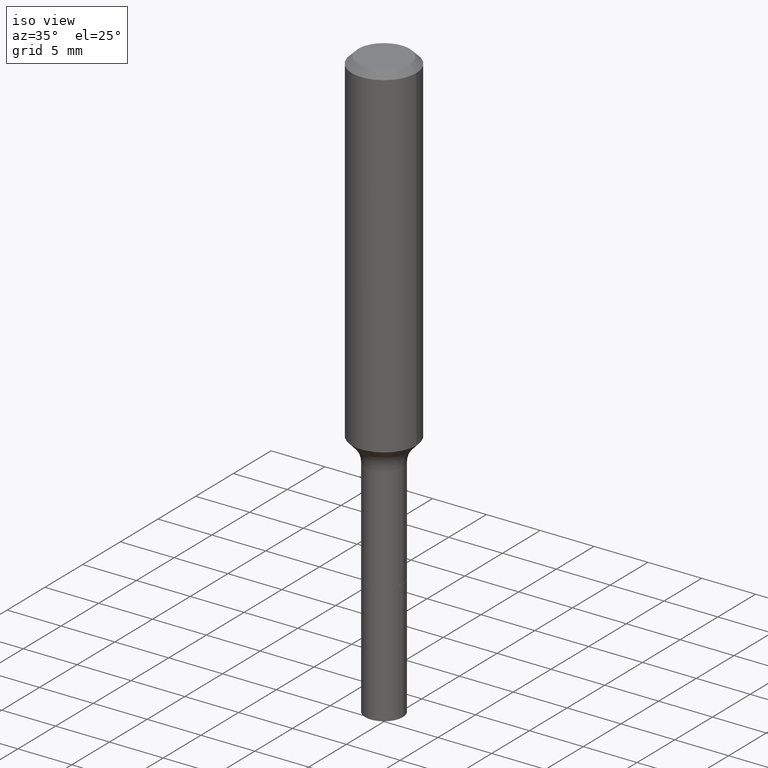
[diagram: clean part render]
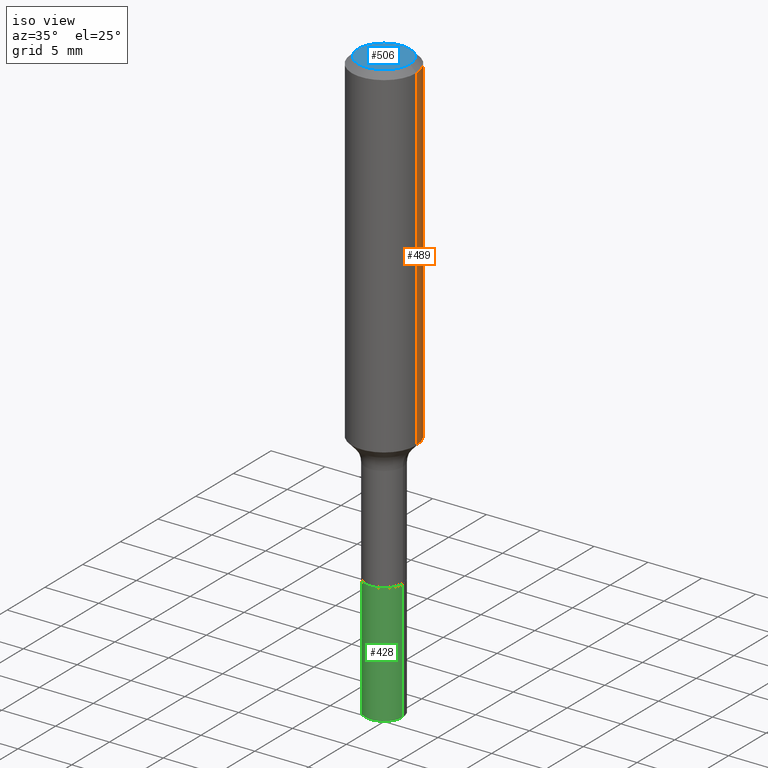
[diagram: same view with three faces highlighted in distinct colors, each labeled with its STEP entity id]
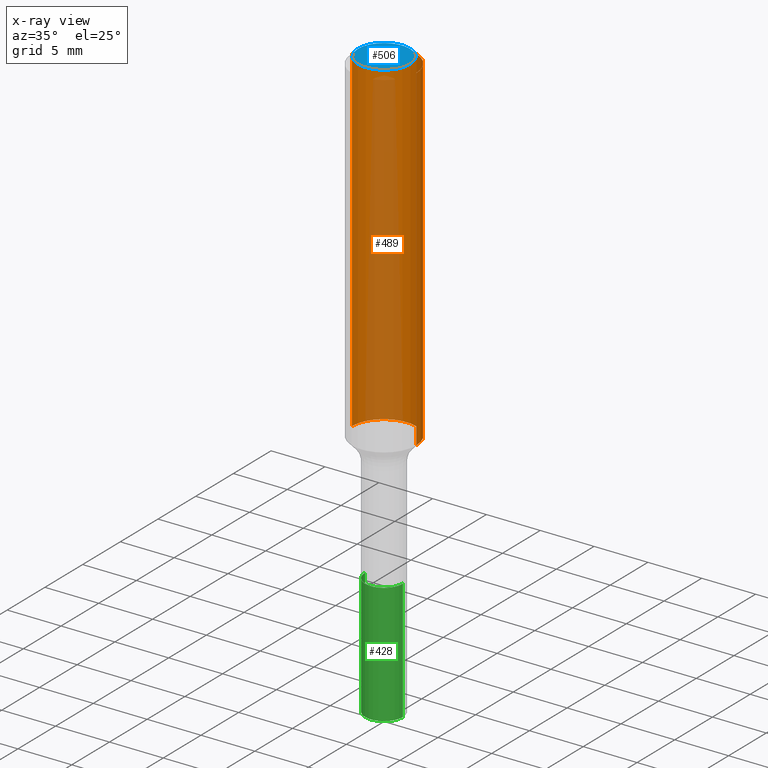
[diagram: x-ray of the same camera — body ghosted, the three highlighted faces saturated]
A machine part, iso view with three faces highlighted in distinct colors.
The next image is the same camera in x-ray (body ghosted, the three faces saturated) — at least one of them is partly hidden behind the body in this view.
Their STEP definitions:

[orange] entity #489 — the highlighted cylindrical surface (partial cylindrical patch) has radius 2.9997 mm, axis along (-0, 0, 1).
#2 = VECTOR ( 'NONE', #136, 39.37007874015748143 ) ;
#6 = EDGE_CURVE ( 'NONE', #184, #417, #226, .T. ) ;
#12 = CARTESIAN_POINT ( 'NONE',  ( 0.1181000000000001493, -5.203447587460667215E-15, -1.254126621417589904 ) ) ;
#19 = CYLINDRICAL_SURFACE ( 'NONE', #340, 0.1181000000000000660 ) ;
#55 = AXIS2_PLACEMENT_3D ( 'NONE', #391, #233, #276 ) ;
#59 = CARTESIAN_POINT ( 'NONE',  ( 0.1180999999999999966, -9.071566814582237199E-16, -0.02362000000000015129 ) ) ;
#66 = ORIENTED_EDGE ( 'NONE', *, *, #170, .F. ) ;
#136 = DIRECTION ( 'NONE',  ( -2.445468806185136877E-29, 3.491481338843145188E-15, 1.000000000000000000 ) ) ;
#145 = ORIENTED_EDGE ( 'NONE', *, *, #399, .T. ) ;
#161 = EDGE_LOOP ( 'NONE', ( #145, #470, #193, #66 ) ) ;
#169 = DIRECTION ( 'NONE',  ( 1.000000000000000000, -6.982962677686264344E-15, 0.000000000000000000 ) ) ;
#170 = EDGE_CURVE ( 'NONE', #261, #184, #378, .T. ) ;
#174 = CARTESIAN_POINT ( 'NONE',  ( -0.1180999999999999966, -1.391463271292017430E-15, -0.02362000000000015129 ) ) ;
#184 = VERTEX_POINT ( 'NONE', #59 ) ;
#193 = ORIENTED_EDGE ( 'NONE', *, *, #6, .F. ) ;
#201 = CARTESIAN_POINT ( 'NONE',  ( 0.000000000000000000, 0.000000000000000000, 0.000000000000000000 ) ) ;
#204 = CARTESIAN_POINT ( 'NONE',  ( 3.066927531683072292E-29, -4.378759695225917375E-15, -1.254126621417589904 ) ) ;
#219 = VERTEX_POINT ( 'NONE', #490 ) ;
#226 = CIRCLE ( 'NONE', #55, 0.1180999999999999966 ) ;
#233 = DIRECTION ( 'NONE',  ( -2.445468806185136597E-29, 3.491481338843145583E-15, 1.000000000000000000 ) ) ;
#258 = VECTOR ( 'NONE', #419, 39.37007874015748143 ) ;
#261 = VERTEX_POINT ( 'NONE', #12 ) ;
#276 = DIRECTION ( 'NONE',  ( 1.000000000000000000, -6.982962677686266711E-15, 0.000000000000000000 ) ) ;
#289 = DIRECTION ( 'NONE',  ( -2.445468806185136597E-29, 3.491481338843145583E-15, 1.000000000000000000 ) ) ;
#298 = EDGE_CURVE ( 'NONE', #219, #417, #457, .T. ) ;
#340 = AXIS2_PLACEMENT_3D ( 'NONE', #201, #449, #416 ) ;
#353 = AXIS2_PLACEMENT_3D ( 'NONE', #204, #289, #169 ) ;
#369 = CARTESIAN_POINT ( 'NONE',  ( 0.1181000000000000660, -8.246878922347485584E-16, 5.758764772215003944E-30 ) ) ;
#378 = LINE ( 'NONE', #369, #258 ) ;
#391 = CARTESIAN_POINT ( 'NONE',  ( 5.776197320209329284E-31, -8.246878922347561759E-17, -0.02362000000000015129 ) ) ;
#399 = EDGE_CURVE ( 'NONE', #261, #219, #474, .T. ) ;
#403 = FACE_OUTER_BOUND ( 'NONE', #161, .T. ) ;
#416 = DIRECTION ( 'NONE',  ( 1.000000000000000000, -6.982962677686266711E-15, 4.876176775795936353E-29 ) ) ;
#417 = VERTEX_POINT ( 'NONE', #174 ) ;
#419 = DIRECTION ( 'NONE',  ( -2.445468806185136877E-29, 3.491481338843145188E-15, 1.000000000000000000 ) ) ;
#449 = DIRECTION ( 'NONE',  ( -2.445468806185136597E-29, 3.491481338843145583E-15, 1.000000000000000000 ) ) ;
#457 = LINE ( 'NONE', #498, #2 ) ;
#470 = ORIENTED_EDGE ( 'NONE', *, *, #298, .T. ) ;
#474 = CIRCLE ( 'NONE', #353, 0.1181000000000001493 ) ;
#489 = ADVANCED_FACE ( 'NONE', ( #403 ), #19, .T. ) ;
#490 = CARTESIAN_POINT ( 'NONE',  ( -0.1181000000000001493, -3.539608724293237994E-15, -1.254126621417589904 ) ) ;
#498 = CARTESIAN_POINT ( 'NONE',  ( -0.1181000000000000660, 8.391509709326787887E-16, -5.809262341591047287E-30 ) ) ;

[blue] entity #506 — the highlighted planar face has unit normal (0, -0, -1).
#10 = PLANE ( 'NONE',  #185 ) ;
#17 = EDGE_CURVE ( 'NONE', #376, #433, #430, .T. ) ;
#29 = DIRECTION ( 'NONE',  ( -2.445468806185136597E-29, 3.491481338843145583E-15, 1.000000000000000000 ) ) ;
#34 = DIRECTION ( 'NONE',  ( 1.000000000000000000, -6.982962677686267499E-15, 4.875432709231658792E-29 ) ) ;
#86 = CARTESIAN_POINT ( 'NONE',  ( 3.772893820736570314E-46, -5.386692455541008845E-32, -1.542810037565835988E-17 ) ) ;
#89 = AXIS2_PLACEMENT_3D ( 'NONE', #432, #29, #300 ) ;
#134 = CARTESIAN_POINT ( 'NONE',  ( 0.09447999999999998066, -7.704367267948738690E-16, -3.085620075131172158E-17 ) ) ;
#153 = CARTESIAN_POINT ( 'NONE',  ( 7.545787641473140628E-46, -1.077338491108201769E-31, -3.085620075131671975E-17 ) ) ;
#171 = DIRECTION ( 'NONE',  ( 2.438088387897960049E-29, -3.491481338843145188E-15, -1.000000000000000000 ) ) ;
#185 = AXIS2_PLACEMENT_3D ( 'NONE', #86, #171, #285 ) ;
#285 = DIRECTION ( 'NONE',  ( -1.000000000000000000, 6.982962677686265922E-15, -4.876176775795935793E-29 ) ) ;
#300 = DIRECTION ( 'NONE',  ( 1.000000000000000000, -6.982962677686267499E-15, 4.875432709231658792E-29 ) ) ;
#314 = CIRCLE ( 'NONE', #89, 0.09447999999999998066 ) ;
#339 = EDGE_CURVE ( 'NONE', #433, #376, #314, .T. ) ;
#363 = DIRECTION ( 'NONE',  ( -2.445468806185136597E-29, 3.491481338843145583E-15, 1.000000000000000000 ) ) ;
#376 = VERTEX_POINT ( 'NONE', #134 ) ;
#379 = EDGE_LOOP ( 'NONE', ( #431, #443 ) ) ;
#430 = CIRCLE ( 'NONE', #517, 0.09447999999999998066 ) ;
#431 = ORIENTED_EDGE ( 'NONE', *, *, #339, .T. ) ;
#432 = CARTESIAN_POINT ( 'NONE',  ( 7.545787641473140628E-46, -1.077338491108201769E-31, -3.085620075131671975E-17 ) ) ;
#433 = VERTEX_POINT ( 'NONE', #491 ) ;
#443 = ORIENTED_EDGE ( 'NONE', *, *, #17, .T. ) ;
#455 = FACE_OUTER_BOUND ( 'NONE', #379, .T. ) ;
#491 = CARTESIAN_POINT ( 'NONE',  ( -0.09447999999999998066, 7.009847083995354710E-16, -3.085620075132147757E-17 ) ) ;
#506 = ADVANCED_FACE ( 'NONE', ( #455 ), #10, .F. ) ;
#517 = AXIS2_PLACEMENT_3D ( 'NONE', #153, #363, #34 ) ;

[green] entity #428 — the highlighted cylindrical surface (edge-blend (fillet) strip) has radius 1.7501 mm, axis along (-0, 0, 1).
#20 = DIRECTION ( 'NONE',  ( -2.445468806185136877E-29, 3.491481338843145188E-15, 1.000000000000000000 ) ) ;
#39 = CIRCLE ( 'NONE', #101, 0.06890000000000000291 ) ;
#42 = ORIENTED_EDGE ( 'NONE', *, *, #118, .T. ) ;
#47 = DIRECTION ( 'NONE',  ( 1.000000000000000000, -6.982962677686273021E-15, 0.000000000000000000 ) ) ;
#52 = LINE ( 'NONE', #422, #216 ) ;
#56 = AXIS2_PLACEMENT_3D ( 'NONE', #483, #321, #255 ) ;
#101 = AXIS2_PLACEMENT_3D ( 'NONE', #328, #335, #503 ) ;
#105 = EDGE_LOOP ( 'NONE', ( #137, #268, #42, #427 ) ) ;
#118 = EDGE_CURVE ( 'NONE', #215, #421, #52, .T. ) ;
#124 = CARTESIAN_POINT ( 'NONE',  ( 0.06890000000000000291, -6.501836549193703482E-15, -1.724399999999999711 ) ) ;
#128 = DIRECTION ( 'NONE',  ( -2.445468806185136597E-29, 3.491481338843145583E-15, 1.000000000000000000 ) ) ;
#133 = CARTESIAN_POINT ( 'NONE',  ( -0.06890000000000007230, -5.531146475762410202E-15, -1.724399999999999711 ) ) ;
#137 = ORIENTED_EDGE ( 'NONE', *, *, #156, .F. ) ;
#156 = EDGE_CURVE ( 'NONE', #482, #469, #322, .T. ) ;
#163 = CARTESIAN_POINT ( 'NONE',  ( -0.06890000000000000291, -6.301018110977323253E-15, -1.724399999999999711 ) ) ;
#172 = CARTESIAN_POINT ( 'NONE',  ( 0.06890000000000014169, -8.041579819623531161E-15, -2.165399999999999991 ) ) ;
#195 = AXIS2_PLACEMENT_3D ( 'NONE', #452, #128, #47 ) ;
#215 = VERTEX_POINT ( 'NONE', #172 ) ;
#216 = VECTOR ( 'NONE', #291, 39.37007874015748143 ) ;
#254 = EDGE_CURVE ( 'NONE', #469, #421, #39, .T. ) ;
#255 = DIRECTION ( 'NONE',  ( 1.000000000000000000, -6.982962677686265922E-15, 0.000000000000000000 ) ) ;
#268 = ORIENTED_EDGE ( 'NONE', *, *, #411, .T. ) ;
#291 = DIRECTION ( 'NONE',  ( -2.445468806185136877E-29, 3.491481338843145188E-15, 1.000000000000000000 ) ) ;
#321 = DIRECTION ( 'NONE',  ( -2.445468806185136597E-29, 3.491481338843145583E-15, 1.000000000000000000 ) ) ;
#322 = LINE ( 'NONE', #133, #466 ) ;
#328 = CARTESIAN_POINT ( 'NONE',  ( 4.216966409385649156E-29, -6.020710420701119744E-15, -1.724399999999999711 ) ) ;
#335 = DIRECTION ( 'NONE',  ( -2.445468806185136597E-29, 3.491481338843145583E-15, 1.000000000000000000 ) ) ;
#354 = CARTESIAN_POINT ( 'NONE',  ( -0.06890000000000012781, -6.301018110977322464E-15, -2.165399999999999991 ) ) ;
#372 = CIRCLE ( 'NONE', #56, 0.06890000000000014169 ) ;
#375 = FACE_OUTER_BOUND ( 'NONE', #105, .T. ) ;
#411 = EDGE_CURVE ( 'NONE', #482, #215, #372, .T. ) ;
#421 = VERTEX_POINT ( 'NONE', #124 ) ;
#422 = CARTESIAN_POINT ( 'NONE',  ( 0.06890000000000007230, -6.501836549193704271E-15, -1.724399999999999711 ) ) ;
#427 = ORIENTED_EDGE ( 'NONE', *, *, #254, .F. ) ;
#428 = ADVANCED_FACE ( 'NONE', ( #375 ), #458, .T. ) ;
#452 = CARTESIAN_POINT ( 'NONE',  ( 4.216966409385649156E-29, -6.020710420701119744E-15, -1.724399999999999711 ) ) ;
#458 = CYLINDRICAL_SURFACE ( 'NONE', #195, 0.06890000000000007230 ) ;
#466 = VECTOR ( 'NONE', #20, 39.37007874015748143 ) ;
#469 = VERTEX_POINT ( 'NONE', #163 ) ;
#482 = VERTEX_POINT ( 'NONE', #354 ) ;
#483 = CARTESIAN_POINT ( 'NONE',  ( 5.295418152913294345E-29, -7.560453691130947423E-15, -2.165399999999999991 ) ) ;
#503 = DIRECTION ( 'NONE',  ( 1.000000000000000000, -6.982962677686265922E-15, 0.000000000000000000 ) ) ;